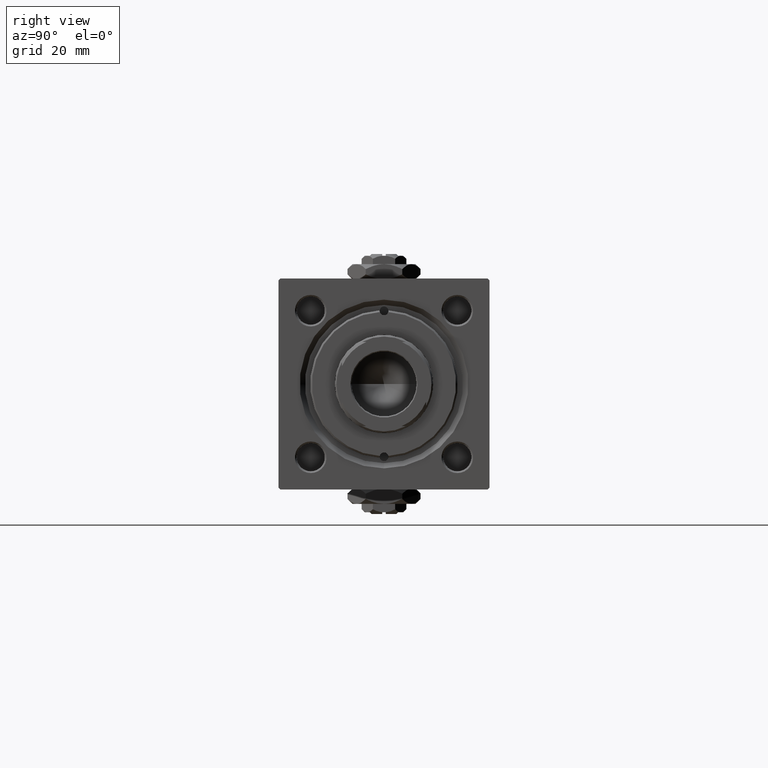
[diagram: clean part render]
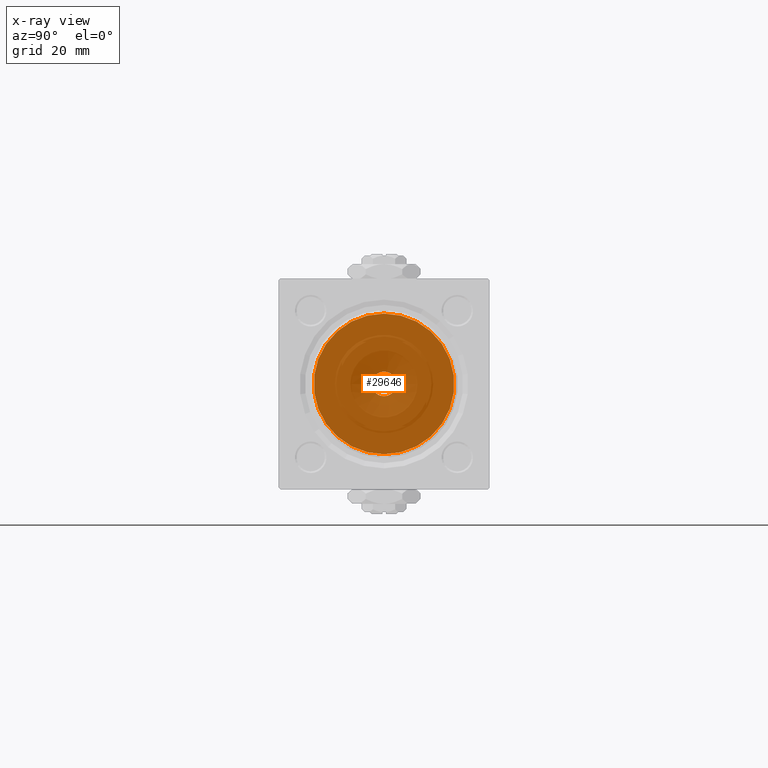
[diagram: x-ray — body ghosted, one internal face saturated and labeled with its STEP entity id]
A machine part, right view, then the same camera in x-ray: the body is ghosted and one INTERNAL B-rep face — a face not visible from any outside direction — is saturated and labeled: STEP entity #29646.
In plain terms, the highlighted planar face has unit normal (-1, 0, 0).
Its self-contained STEP definition (entity closure, byte-faithful):
#344 = VERTEX_POINT ( 'NONE', #10806 ) ;
#403 = CARTESIAN_POINT ( 'NONE',  ( 37.00000000000000000, 0.000000000000000000, 0.000000000000000000 ) ) ;
#511 = ORIENTED_EDGE ( 'NONE', *, *, #19719, .T. ) ;
#515 = CARTESIAN_POINT ( 'NONE',  ( 37.00000000000000000, -1.527916156705046464E-16, -20.00000000000000000 ) ) ;
#1096 = AXIS2_PLACEMENT_3D ( 'NONE', #24834, #45543, #17387 ) ;
#1964 = CIRCLE ( 'NONE', #40972, 20.00000000000000000 ) ;
#2271 = ORIENTED_EDGE ( 'NONE', *, *, #45483, .T. ) ;
#4719 = CARTESIAN_POINT ( 'NONE',  ( 37.00000000000000711, 0.000000000000000000, 0.000000000000000000 ) ) ;
#5671 = AXIS2_PLACEMENT_3D ( 'NONE', #403, #35723, #24028 ) ;
#6137 = CIRCLE ( 'NONE', #12910, 3.500000000000000000 ) ;
#7884 = CIRCLE ( 'NONE', #1096, 3.500000000000000000 ) ;
#9318 = VERTEX_POINT ( 'NONE', #26483 ) ;
#10340 = AXIS2_PLACEMENT_3D ( 'NONE', #52442, #35986, #51661 ) ;
#10806 = CARTESIAN_POINT ( 'NONE',  ( 37.00000000000000000, -2.602085213965210642E-15, 20.00000000000000000 ) ) ;
#12450 = VERTEX_POINT ( 'NONE', #23708 ) ;
#12679 = DIRECTION ( 'NONE',  ( 0.000000000000000000, 0.000000000000000000, 1.000000000000000000 ) ) ;
#12910 = AXIS2_PLACEMENT_3D ( 'NONE', #4719, #31363, #12679 ) ;
#13615 = VERTEX_POINT ( 'NONE', #515 ) ;
#14536 = ORIENTED_EDGE ( 'NONE', *, *, #43817, .T. ) ;
#16293 = CIRCLE ( 'NONE', #10340, 20.00000000000000000 ) ;
#16926 = CARTESIAN_POINT ( 'NONE',  ( 37.00000000000000000, -2.602085213965210642E-15, 0.000000000000000000 ) ) ;
#17387 = DIRECTION ( 'NONE',  ( 0.000000000000000000, 0.000000000000000000, 1.000000000000000000 ) ) ;
#19719 = EDGE_CURVE ( 'NONE', #12450, #9318, #7884, .T. ) ;
#19783 = PLANE ( 'NONE',  #5671 ) ;
#23708 = CARTESIAN_POINT ( 'NONE',  ( 37.00000000000000711, 4.286263797015736595E-16, -3.500000000000000000 ) ) ;
#23762 = FACE_BOUND ( 'NONE', #40230, .T. ) ;
#24028 = DIRECTION ( 'NONE',  ( -0.000000000000000000, 0.000000000000000000, 1.000000000000000000 ) ) ;
#24834 = CARTESIAN_POINT ( 'NONE',  ( 37.00000000000000711, 0.000000000000000000, 0.000000000000000000 ) ) ;
#25158 = DIRECTION ( 'NONE',  ( 1.000000000000000000, 0.000000000000000000, 0.000000000000000000 ) ) ;
#26483 = CARTESIAN_POINT ( 'NONE',  ( 37.00000000000000711, 0.000000000000000000, 3.500000000000000000 ) ) ;
#29646 = ADVANCED_FACE ( 'NONE', ( #23762, #39964 ), #19783, .F. ) ;
#31363 = DIRECTION ( 'NONE',  ( -1.000000000000000000, 0.000000000000000000, -0.000000000000000000 ) ) ;
#35723 = DIRECTION ( 'NONE',  ( -1.000000000000000000, 0.000000000000000000, -0.000000000000000000 ) ) ;
#35986 = DIRECTION ( 'NONE',  ( 1.000000000000000000, 0.000000000000000000, 0.000000000000000000 ) ) ;
#38146 = DIRECTION ( 'NONE',  ( 0.000000000000000000, 0.000000000000000000, -1.000000000000000000 ) ) ;
#39964 = FACE_OUTER_BOUND ( 'NONE', #41447, .T. ) ;
#40230 = EDGE_LOOP ( 'NONE', ( #40999, #511 ) ) ;
#40972 = AXIS2_PLACEMENT_3D ( 'NONE', #16926, #25158, #38146 ) ;
#40999 = ORIENTED_EDGE ( 'NONE', *, *, #45361, .T. ) ;
#41447 = EDGE_LOOP ( 'NONE', ( #14536, #2271 ) ) ;
#43817 = EDGE_CURVE ( 'NONE', #344, #13615, #16293, .T. ) ;
#45361 = EDGE_CURVE ( 'NONE', #9318, #12450, #6137, .T. ) ;
#45483 = EDGE_CURVE ( 'NONE', #13615, #344, #1964, .T. ) ;
#45543 = DIRECTION ( 'NONE',  ( -1.000000000000000000, 0.000000000000000000, -0.000000000000000000 ) ) ;
#51661 = DIRECTION ( 'NONE',  ( 0.000000000000000000, 0.000000000000000000, -1.000000000000000000 ) ) ;
#52442 = CARTESIAN_POINT ( 'NONE',  ( 37.00000000000000000, -2.602085213965210642E-15, 0.000000000000000000 ) ) ;